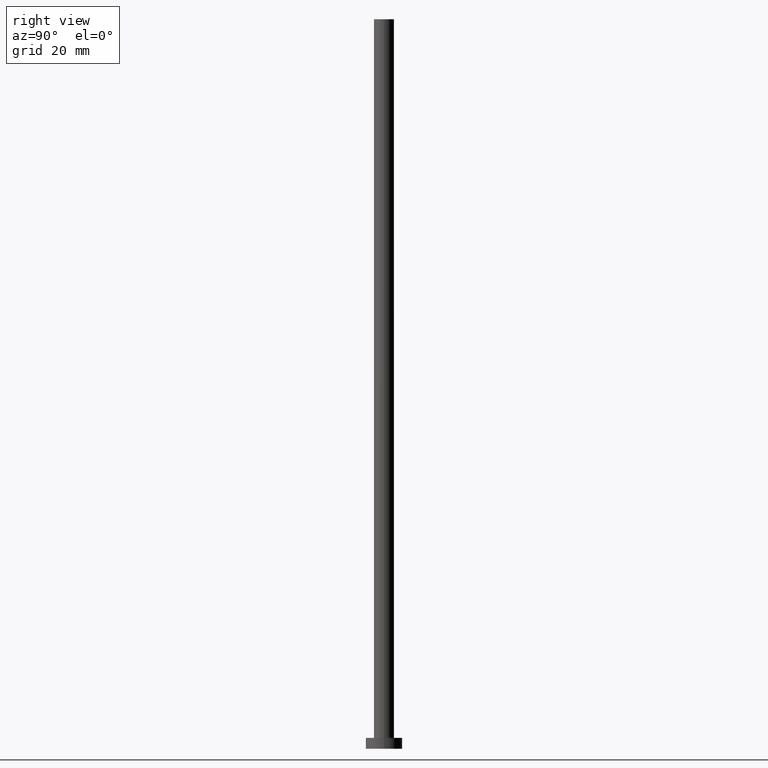
[diagram: clean part render]
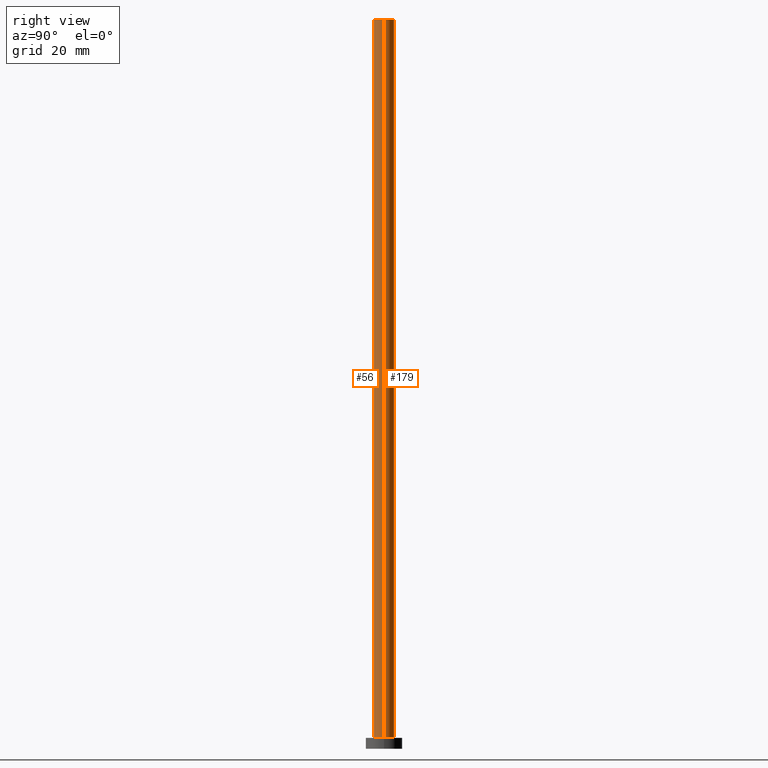
[diagram: same view with one multi-face feature highlighted, each face labeled with its STEP entity id]
A machine part, right view. The highlighted faces form ONE feature: a constant-radius fillet chain: 2 tangent blend faces with common blend radius 2.75 mm. The faces share edges in the B-rep.
Their STEP definitions:
[1] entity #179 (Cylinder):
#3 = CARTESIAN_POINT ( 'NONE',  ( 0.000000000000000000, 0.000000000000000000, 200.0000000000000000 ) ) ;
#11 = VERTEX_POINT ( 'NONE', #164 ) ;
#18 = VECTOR ( 'NONE', #125, 1000.000000000000000 ) ;
#25 = DIRECTION ( 'NONE',  ( -1.000000000000000000, 0.000000000000000000, 0.000000000000000000 ) ) ;
#31 = VERTEX_POINT ( 'NONE', #250 ) ;
#37 = VERTEX_POINT ( 'NONE', #178 ) ;
#44 = EDGE_CURVE ( 'NONE', #158, #37, #236, .T. ) ;
#63 = ORIENTED_EDGE ( 'NONE', *, *, #44, .F. ) ;
#66 = EDGE_CURVE ( 'NONE', #31, #11, #78, .T. ) ;
#70 = AXIS2_PLACEMENT_3D ( 'NONE', #148, #183, #188 ) ;
#78 = LINE ( 'NONE', #253, #90 ) ;
#90 = VECTOR ( 'NONE', #162, 1000.000000000000000 ) ;
#92 = CARTESIAN_POINT ( 'NONE',  ( -2.750000000000000000, 0.000000000000000000, 200.0000000000000000 ) ) ;
#116 = EDGE_LOOP ( 'NONE', ( #190, #145, #212, #63 ) ) ;
#125 = DIRECTION ( 'NONE',  ( -0.000000000000000000, -0.000000000000000000, -1.000000000000000000 ) ) ;
#128 = CARTESIAN_POINT ( 'NONE',  ( 0.000000000000000000, 0.000000000000000000, 200.0000000000000000 ) ) ;
#133 = CIRCLE ( 'NONE', #161, 2.750000000000000000 ) ;
#141 = EDGE_CURVE ( 'NONE', #11, #37, #206, .T. ) ;
#145 = ORIENTED_EDGE ( 'NONE', *, *, #66, .T. ) ;
#148 = CARTESIAN_POINT ( 'NONE',  ( 0.000000000000000000, 0.000000000000000000, 3.000000000000000000 ) ) ;
#152 = DIRECTION ( 'NONE',  ( -0.000000000000000000, -0.000000000000000000, -1.000000000000000000 ) ) ;
#158 = VERTEX_POINT ( 'NONE', #92 ) ;
#161 = AXIS2_PLACEMENT_3D ( 'NONE', #3, #241, #205 ) ;
#162 = DIRECTION ( 'NONE',  ( -0.000000000000000000, -0.000000000000000000, -1.000000000000000000 ) ) ;
#164 = CARTESIAN_POINT ( 'NONE',  ( 2.750000000000000000, 3.367778697655221012E-16, 3.000000000000000000 ) ) ;
#178 = CARTESIAN_POINT ( 'NONE',  ( -2.750000000000000000, 0.000000000000000000, 3.000000000000000000 ) ) ;
#179 = ADVANCED_FACE ( 'NONE', ( #240 ), #220, .T. ) ;
#183 = DIRECTION ( 'NONE',  ( 0.000000000000000000, 0.000000000000000000, 1.000000000000000000 ) ) ;
#188 = DIRECTION ( 'NONE',  ( 1.000000000000000000, 0.000000000000000000, 0.000000000000000000 ) ) ;
#190 = ORIENTED_EDGE ( 'NONE', *, *, #217, .F. ) ;
#201 = CARTESIAN_POINT ( 'NONE',  ( -2.750000000000000000, 0.000000000000000000, 200.0000000000000000 ) ) ;
#205 = DIRECTION ( 'NONE',  ( 1.000000000000000000, 0.000000000000000000, 0.000000000000000000 ) ) ;
#206 = CIRCLE ( 'NONE', #70, 2.750000000000000000 ) ;
#212 = ORIENTED_EDGE ( 'NONE', *, *, #141, .T. ) ;
#217 = EDGE_CURVE ( 'NONE', #31, #158, #133, .T. ) ;
#220 = CYLINDRICAL_SURFACE ( 'NONE', #237, 2.750000000000000000 ) ;
#236 = LINE ( 'NONE', #201, #18 ) ;
#237 = AXIS2_PLACEMENT_3D ( 'NONE', #128, #152, #25 ) ;
#240 = FACE_OUTER_BOUND ( 'NONE', #116, .T. ) ;
#241 = DIRECTION ( 'NONE',  ( 0.000000000000000000, 0.000000000000000000, 1.000000000000000000 ) ) ;
#250 = CARTESIAN_POINT ( 'NONE',  ( 2.750000000000000000, 3.367778697655221012E-16, 200.0000000000000000 ) ) ;
#253 = CARTESIAN_POINT ( 'NONE',  ( 2.750000000000000000, 3.367778697655221012E-16, 200.0000000000000000 ) ) ;
[2] entity #56 (Cylinder):
#11 = VERTEX_POINT ( 'NONE', #164 ) ;
#18 = VECTOR ( 'NONE', #125, 1000.000000000000000 ) ;
#20 = DIRECTION ( 'NONE',  ( 0.000000000000000000, 0.000000000000000000, 1.000000000000000000 ) ) ;
#31 = VERTEX_POINT ( 'NONE', #250 ) ;
#33 = ORIENTED_EDGE ( 'NONE', *, *, #168, .T. ) ;
#37 = VERTEX_POINT ( 'NONE', #178 ) ;
#42 = CARTESIAN_POINT ( 'NONE',  ( 0.000000000000000000, 0.000000000000000000, 3.000000000000000000 ) ) ;
#44 = EDGE_CURVE ( 'NONE', #158, #37, #236, .T. ) ;
#56 = ADVANCED_FACE ( 'NONE', ( #142 ), #181, .T. ) ;
#62 = ORIENTED_EDGE ( 'NONE', *, *, #66, .F. ) ;
#64 = AXIS2_PLACEMENT_3D ( 'NONE', #126, #20, #106 ) ;
#65 = CARTESIAN_POINT ( 'NONE',  ( 0.000000000000000000, 0.000000000000000000, 200.0000000000000000 ) ) ;
#66 = EDGE_CURVE ( 'NONE', #31, #11, #78, .T. ) ;
#77 = AXIS2_PLACEMENT_3D ( 'NONE', #42, #186, #170 ) ;
#78 = LINE ( 'NONE', #253, #90 ) ;
#90 = VECTOR ( 'NONE', #162, 1000.000000000000000 ) ;
#92 = CARTESIAN_POINT ( 'NONE',  ( -2.750000000000000000, 0.000000000000000000, 200.0000000000000000 ) ) ;
#104 = ORIENTED_EDGE ( 'NONE', *, *, #114, .F. ) ;
#106 = DIRECTION ( 'NONE',  ( 1.000000000000000000, 0.000000000000000000, 0.000000000000000000 ) ) ;
#114 = EDGE_CURVE ( 'NONE', #158, #31, #184, .T. ) ;
#125 = DIRECTION ( 'NONE',  ( -0.000000000000000000, -0.000000000000000000, -1.000000000000000000 ) ) ;
#126 = CARTESIAN_POINT ( 'NONE',  ( 0.000000000000000000, 0.000000000000000000, 200.0000000000000000 ) ) ;
#142 = FACE_OUTER_BOUND ( 'NONE', #228, .T. ) ;
#151 = CIRCLE ( 'NONE', #77, 2.750000000000000000 ) ;
#158 = VERTEX_POINT ( 'NONE', #92 ) ;
#160 = ORIENTED_EDGE ( 'NONE', *, *, #44, .T. ) ;
#162 = DIRECTION ( 'NONE',  ( -0.000000000000000000, -0.000000000000000000, -1.000000000000000000 ) ) ;
#164 = CARTESIAN_POINT ( 'NONE',  ( 2.750000000000000000, 3.367778697655221012E-16, 3.000000000000000000 ) ) ;
#168 = EDGE_CURVE ( 'NONE', #37, #11, #151, .T. ) ;
#170 = DIRECTION ( 'NONE',  ( 1.000000000000000000, 0.000000000000000000, 0.000000000000000000 ) ) ;
#178 = CARTESIAN_POINT ( 'NONE',  ( -2.750000000000000000, 0.000000000000000000, 3.000000000000000000 ) ) ;
#181 = CYLINDRICAL_SURFACE ( 'NONE', #252, 2.750000000000000000 ) ;
#184 = CIRCLE ( 'NONE', #64, 2.750000000000000000 ) ;
#186 = DIRECTION ( 'NONE',  ( 0.000000000000000000, 0.000000000000000000, 1.000000000000000000 ) ) ;
#201 = CARTESIAN_POINT ( 'NONE',  ( -2.750000000000000000, 0.000000000000000000, 200.0000000000000000 ) ) ;
#211 = DIRECTION ( 'NONE',  ( -1.000000000000000000, 0.000000000000000000, 0.000000000000000000 ) ) ;
#228 = EDGE_LOOP ( 'NONE', ( #62, #104, #160, #33 ) ) ;
#236 = LINE ( 'NONE', #201, #18 ) ;
#250 = CARTESIAN_POINT ( 'NONE',  ( 2.750000000000000000, 3.367778697655221012E-16, 200.0000000000000000 ) ) ;
#252 = AXIS2_PLACEMENT_3D ( 'NONE', #65, #255, #211 ) ;
#253 = CARTESIAN_POINT ( 'NONE',  ( 2.750000000000000000, 3.367778697655221012E-16, 200.0000000000000000 ) ) ;
#255 = DIRECTION ( 'NONE',  ( -0.000000000000000000, -0.000000000000000000, -1.000000000000000000 ) ) ;